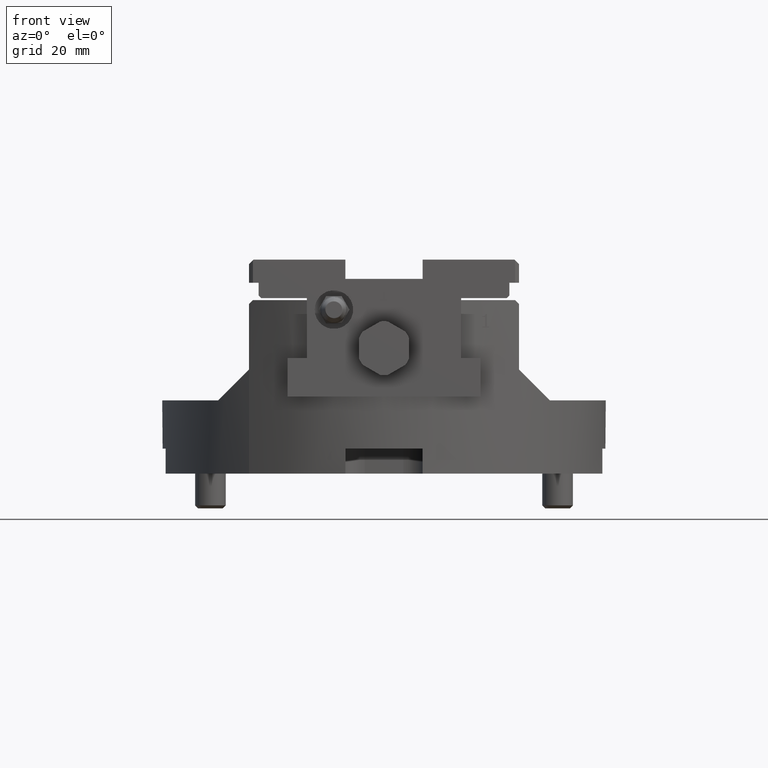
[diagram: clean part render]
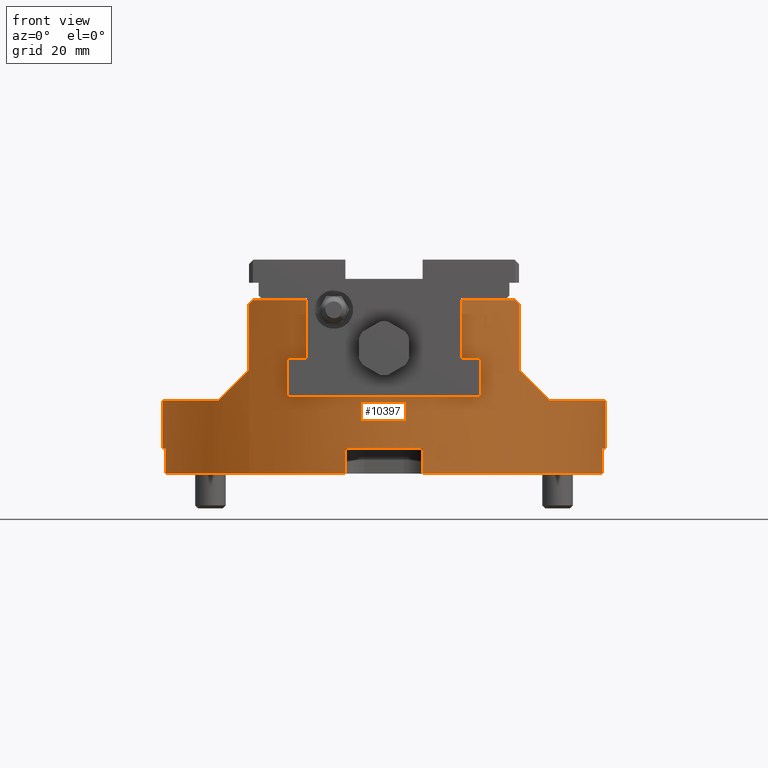
[diagram: same view with one face highlighted and labeled with its STEP entity id]
A machine part, front view. The second image highlights one B-rep face of the part: STEP entity #10397.
In plain terms, the highlighted cylindrical surface (bore or boss wall) has radius 57.5 mm, axis along (0, 0, 1).
Its self-contained STEP definition (entity closure, byte-faithful):
#3163=CARTESIAN_POINT('',(19.999999999999993,53.909646632119561,45.0));
#3164=VERTEX_POINT('',#3163);
#3173=CARTESIAN_POINT('',(20.000000000000004,53.909646632119561,30.000000000000014));
#3174=VERTEX_POINT('',#3173);
#3175=CARTESIAN_POINT('',(20.000000000000018,53.909646632119561,30.000000000000014));
#3176=DIRECTION('',(0.0,0.0,1.0));
#3177=VECTOR('',#3176,14.999999999999986);
#3178=LINE('',#3175,#3177);
#3179=EDGE_CURVE('',#3174,#3164,#3178,.T.);
#3219=CARTESIAN_POINT('',(25.0,51.780787943019952,30.000000000000014));
#3220=VERTEX_POINT('',#3219);
#3221=CARTESIAN_POINT('',(-1.804112E-015,2.818926E-015,30.000000000000014));
#3222=DIRECTION('',(0.0,0.0,1.0));
#3223=DIRECTION('',(0.608695652173913,0.793403808299768,0.0));
#3224=AXIS2_PLACEMENT_3D('',#3221,#3222,#3223);
#3225=CIRCLE('',#3224,57.5);
#3226=EDGE_CURVE('',#3220,#3174,#3225,.T.);
#3251=CARTESIAN_POINT('',(25.000000000000007,51.780787943019945,20.000000000000014));
#3252=VERTEX_POINT('',#3251);
#3253=CARTESIAN_POINT('',(25.000000000000028,51.780787943019931,20.000000000000014));
#3254=DIRECTION('',(0.0,0.0,1.0));
#3255=VECTOR('',#3254,10.0);
#3256=LINE('',#3253,#3255);
#3257=EDGE_CURVE('',#3252,#3220,#3256,.T.);
#3282=CARTESIAN_POINT('',(-24.999999999999993,51.780787943019952,19.999999999999996));
#3283=VERTEX_POINT('',#3282);
#3284=CARTESIAN_POINT('',(-1.804112E-015,2.818926E-015,20.000000000000004));
#3285=DIRECTION('',(0.0,0.0,-1.0));
#3286=DIRECTION('',(0.608695652173913,0.793403808299768,0.0));
#3287=AXIS2_PLACEMENT_3D('',#3284,#3285,#3286);
#3288=CIRCLE('',#3287,57.5);
#3289=EDGE_CURVE('',#3283,#3252,#3288,.T.);
#3314=CARTESIAN_POINT('',(-24.999999999999993,51.780787943019952,29.999999999999993));
#3315=VERTEX_POINT('',#3314);
#3316=CARTESIAN_POINT('',(-24.999999999999993,51.780787943019952,29.999999999999993));
#3317=DIRECTION('',(0.0,0.0,-1.0));
#3318=VECTOR('',#3317,9.999999999999996);
#3319=LINE('',#3316,#3318);
#3320=EDGE_CURVE('',#3315,#3283,#3319,.T.);
#3345=CARTESIAN_POINT('',(-19.999999999999996,53.909646632119568,30.0));
#3346=VERTEX_POINT('',#3345);
#3347=CARTESIAN_POINT('',(-1.804112E-015,2.818926E-015,30.0));
#3348=DIRECTION('',(0.0,0.0,1.0));
#3349=DIRECTION('',(0.608695652173913,0.793403808299768,0.0));
#3350=AXIS2_PLACEMENT_3D('',#3347,#3348,#3349);
#3351=CIRCLE('',#3350,57.5);
#3352=EDGE_CURVE('',#3346,#3315,#3351,.T.);
#4775=CARTESIAN_POINT('',(-19.999999999999996,53.909646632119568,45.0));
#4776=VERTEX_POINT('',#4775);
#4792=CARTESIAN_POINT('',(-19.999999999999996,53.909646632119568,45.0));
#4793=DIRECTION('',(0.0,0.0,-1.0));
#4794=VECTOR('',#4793,15.0);
#4795=LINE('',#4792,#4794);
#4796=EDGE_CURVE('',#4776,#3346,#4795,.T.);
#5194=CARTESIAN_POINT('',(-19.999999999999993,-53.909646632119568,45.0));
#5195=VERTEX_POINT('',#5194);
#5204=CARTESIAN_POINT('',(-19.999999999999993,-53.909646632119568,30.0));
#5205=VERTEX_POINT('',#5204);
#5206=CARTESIAN_POINT('',(-19.999999999999993,-53.909646632119568,30.0));
#5207=DIRECTION('',(0.0,0.0,1.0));
#5208=VECTOR('',#5207,15.0);
#5209=LINE('',#5206,#5208);
#5210=EDGE_CURVE('',#5205,#5195,#5209,.T.);
#6356=CARTESIAN_POINT('',(-24.999999999999993,-51.780787943019952,29.999999999999993));
#6357=VERTEX_POINT('',#6356);
#6358=CARTESIAN_POINT('',(-1.804112E-015,2.818926E-015,30.0));
#6359=DIRECTION('',(0.0,0.0,1.0));
#6360=DIRECTION('',(-0.608695652173913,-0.793403808299768,0.0));
#6361=AXIS2_PLACEMENT_3D('',#6358,#6359,#6360);
#6362=CIRCLE('',#6361,57.499999999999993);
#6363=EDGE_CURVE('',#6357,#5205,#6362,.T.);
#6381=CARTESIAN_POINT('',(-24.999999999999993,-51.780787943019952,19.999999999999996));
#6382=VERTEX_POINT('',#6381);
#6383=CARTESIAN_POINT('',(-24.999999999999993,-51.780787943019952,19.999999999999996));
#6384=DIRECTION('',(0.0,0.0,1.0));
#6385=VECTOR('',#6384,9.999999999999996);
#6386=LINE('',#6383,#6385);
#6387=EDGE_CURVE('',#6382,#6357,#6386,.T.);
#6405=CARTESIAN_POINT('',(25.000000000000007,-51.780787943019945,20.000000000000014));
#6406=VERTEX_POINT('',#6405);
#6407=CARTESIAN_POINT('',(-1.804112E-015,2.818926E-015,20.000000000000004));
#6408=DIRECTION('',(0.0,0.0,-1.0));
#6409=DIRECTION('',(-0.608695652173913,-0.793403808299768,0.0));
#6410=AXIS2_PLACEMENT_3D('',#6407,#6408,#6409);
#6411=CIRCLE('',#6410,57.499999999999993);
#6412=EDGE_CURVE('',#6406,#6382,#6411,.T.);
#6430=CARTESIAN_POINT('',(25.0,-51.780787943019952,30.000000000000014));
#6431=VERTEX_POINT('',#6430);
#6432=CARTESIAN_POINT('',(25.000000000000028,-51.780787943019931,30.000000000000014));
#6433=DIRECTION('',(0.0,0.0,-1.0));
#6434=VECTOR('',#6433,10.0);
#6435=LINE('',#6432,#6434);
#6436=EDGE_CURVE('',#6431,#6406,#6435,.T.);
#6454=CARTESIAN_POINT('',(20.000000000000004,-53.909646632119561,30.000000000000014));
#6455=VERTEX_POINT('',#6454);
#6456=CARTESIAN_POINT('',(-1.804112E-015,2.818926E-015,30.000000000000014));
#6457=DIRECTION('',(0.0,0.0,1.0));
#6458=DIRECTION('',(-0.608695652173913,-0.793403808299768,0.0));
#6459=AXIS2_PLACEMENT_3D('',#6456,#6457,#6458);
#6460=CIRCLE('',#6459,57.499999999999993);
#6461=EDGE_CURVE('',#6455,#6431,#6460,.T.);
#6479=CARTESIAN_POINT('',(19.999999999999996,-53.909646632119561,45.0));
#6480=VERTEX_POINT('',#6479);
#6496=CARTESIAN_POINT('',(20.000000000000018,-53.909646632119561,45.0));
#6497=DIRECTION('',(0.0,0.0,-1.0));
#6498=VECTOR('',#6497,14.999999999999986);
#6499=LINE('',#6496,#6498);
#6500=EDGE_CURVE('',#6480,#6455,#6499,.T.);
#6856=CARTESIAN_POINT('',(-43.0,-38.17394399325277,19.0));
#6857=VERTEX_POINT('',#6856);
#6864=CARTESIAN_POINT('',(-35.0,-45.620718977236656,27.000000000000011));
#6865=VERTEX_POINT('',#6864);
#6866=CARTESIAN_POINT('',(-1.804112E-015,2.818926E-015,62.000000000000128));
#6867=DIRECTION('',(-0.707106781186549,2.616821E-016,0.707106781186546));
#6868=DIRECTION('',(-0.707106781186546,2.184476E-016,-0.707106781186549));
#6869=AXIS2_PLACEMENT_3D('',#6866,#6867,#6868);
#6870=ELLIPSE('',#6869,81.31727983645311,57.499999999999993);
#6871=EDGE_CURVE('',#6857,#6865,#6870,.T.);
#6962=CARTESIAN_POINT('',(-43.0,38.173943993252777,19.0));
#6963=VERTEX_POINT('',#6962);
#6970=CARTESIAN_POINT('',(-1.804112E-015,2.818926E-015,19.0));
#6971=DIRECTION('',(0.0,0.0,-1.0));
#6972=DIRECTION('',(1.0,0.0,0.0));
#6973=AXIS2_PLACEMENT_3D('',#6970,#6971,#6972);
#6974=CIRCLE('',#6973,57.499999999999993);
#6975=EDGE_CURVE('',#6857,#6963,#6974,.T.);
#7019=CARTESIAN_POINT('',(-35.0,45.620718977236656,26.999999999999993));
#7020=VERTEX_POINT('',#7019);
#7027=CARTESIAN_POINT('',(-1.804112E-015,2.818926E-015,62.000000000000234));
#7028=DIRECTION('',(-0.70710678118655,2.616821E-016,0.707106781186545));
#7029=DIRECTION('',(-0.707106781186545,4.368953E-016,-0.70710678118655));
#7030=AXIS2_PLACEMENT_3D('',#7027,#7028,#7029);
#7031=ELLIPSE('',#7030,81.31727983645321,57.499999999999993);
#7032=EDGE_CURVE('',#7020,#6963,#7031,.T.);
#7044=CARTESIAN_POINT('',(-35.0,-45.620718977236656,44.0));
#7045=VERTEX_POINT('',#7044);
#7046=CARTESIAN_POINT('',(-35.0,-45.620718977236656,27.000000000000011));
#7047=DIRECTION('',(0.0,0.0,1.0));
#7048=VECTOR('',#7047,16.999999999999989);
#7049=LINE('',#7046,#7048);
#7050=EDGE_CURVE('',#6865,#7045,#7049,.T.);
#7052=CARTESIAN_POINT('',(-35.0,45.620718977236656,44.0));
#7053=VERTEX_POINT('',#7052);
#7060=CARTESIAN_POINT('',(-35.0,45.620718977236656,26.999999999999993));
#7061=DIRECTION('',(0.0,0.0,1.0));
#7062=VECTOR('',#7061,17.000000000000007);
#7063=LINE('',#7060,#7062);
#7064=EDGE_CURVE('',#7020,#7053,#7063,.T.);
#7588=CARTESIAN_POINT('',(43.0,38.173943993252777,19.0));
#7589=VERTEX_POINT('',#7588);
#7596=CARTESIAN_POINT('',(35.0,45.620718977236635,26.999999999999993));
#7597=VERTEX_POINT('',#7596);
#7598=CARTESIAN_POINT('',(-1.804112E-015,2.818926E-015,62.000000000000234));
#7599=DIRECTION('',(0.70710678118655,2.616821E-016,0.707106781186545));
#7600=DIRECTION('',(-0.707106781186545,-2.730596E-016,0.70710678118655));
#7601=AXIS2_PLACEMENT_3D('',#7598,#7599,#7600);
#7602=ELLIPSE('',#7601,81.31727983645321,57.499999999999993);
#7603=EDGE_CURVE('',#7589,#7597,#7602,.T.);
#7694=CARTESIAN_POINT('',(43.0,-38.17394399325277,19.0));
#7695=VERTEX_POINT('',#7694);
#7702=CARTESIAN_POINT('',(-1.804112E-015,2.818926E-015,19.0));
#7703=DIRECTION('',(0.0,0.0,-1.0));
#7704=DIRECTION('',(1.0,0.0,0.0));
#7705=AXIS2_PLACEMENT_3D('',#7702,#7703,#7704);
#7706=CIRCLE('',#7705,57.499999999999993);
#7707=EDGE_CURVE('',#7589,#7695,#7706,.T.);
#7751=CARTESIAN_POINT('',(35.0,-45.620718977236656,27.000000000000007));
#7752=VERTEX_POINT('',#7751);
#7759=CARTESIAN_POINT('',(-1.804112E-015,2.818926E-015,62.000000000000128));
#7760=DIRECTION('',(0.707106781186549,2.616821E-016,0.707106781186546));
#7761=DIRECTION('',(-0.707106781186546,-1.638357E-016,0.707106781186549));
#7762=AXIS2_PLACEMENT_3D('',#7759,#7760,#7761);
#7763=ELLIPSE('',#7762,81.317279836453125,57.5);
#7764=EDGE_CURVE('',#7752,#7695,#7763,.T.);
#7776=CARTESIAN_POINT('',(35.0,45.620718977236635,44.0));
#7777=VERTEX_POINT('',#7776);
#7778=CARTESIAN_POINT('',(35.0,45.620718977236635,26.999999999999993));
#7779=DIRECTION('',(0.0,0.0,1.0));
#7780=VECTOR('',#7779,17.000000000000007);
#7781=LINE('',#7778,#7780);
#7782=EDGE_CURVE('',#7597,#7777,#7781,.T.);
#7784=CARTESIAN_POINT('',(35.0,-45.620718977236656,44.0));
#7785=VERTEX_POINT('',#7784);
#7792=CARTESIAN_POINT('',(35.0,-45.620718977236656,27.000000000000007));
#7793=DIRECTION('',(0.0,0.0,1.0));
#7794=VECTOR('',#7793,16.999999999999993);
#7795=LINE('',#7792,#7794);
#7796=EDGE_CURVE('',#7752,#7785,#7795,.T.);
#9240=CARTESIAN_POINT('',(56.623758264530615,9.999999999999981,6.5));
#9241=VERTEX_POINT('',#9240);
#9249=CARTESIAN_POINT('',(56.623758264530615,9.999999999999981,0.0));
#9250=VERTEX_POINT('',#9249);
#9257=CARTESIAN_POINT('',(56.623758264530622,9.999999999999981,6.5));
#9258=DIRECTION('',(0.0,0.0,-1.0));
#9259=VECTOR('',#9258,6.5);
#9260=LINE('',#9257,#9259);
#9261=EDGE_CURVE('',#9241,#9250,#9260,.T.);
#9271=CARTESIAN_POINT('',(56.623758264530615,-10.00000000000002,6.5));
#9272=VERTEX_POINT('',#9271);
#9279=CARTESIAN_POINT('',(56.623758264530615,-10.00000000000002,0.0));
#9280=VERTEX_POINT('',#9279);
#9281=CARTESIAN_POINT('',(56.623758264530615,-10.00000000000002,0.0));
#9282=DIRECTION('',(0.0,0.0,1.0));
#9283=VECTOR('',#9282,6.5);
#9284=LINE('',#9281,#9283);
#9285=EDGE_CURVE('',#9280,#9272,#9284,.T.);
#9306=CARTESIAN_POINT('',(-1.804112E-015,2.818926E-015,6.5));
#9307=DIRECTION('',(0.0,0.0,1.0));
#9308=DIRECTION('',(-0.608695652173913,-0.793403808299768,0.0));
#9309=AXIS2_PLACEMENT_3D('',#9306,#9307,#9308);
#9310=CIRCLE('',#9309,57.499999999999993);
#9311=EDGE_CURVE('',#9272,#9241,#9310,.T.);
#9468=CARTESIAN_POINT('',(9.999999999999979,-56.623758264530615,6.5));
#9469=VERTEX_POINT('',#9468);
#9477=CARTESIAN_POINT('',(9.999999999999979,-56.623758264530615,0.0));
#9478=VERTEX_POINT('',#9477);
#9485=CARTESIAN_POINT('',(9.999999999999979,-56.623758264530622,6.5));
#9486=DIRECTION('',(0.0,0.0,-1.0));
#9487=VECTOR('',#9486,6.5);
#9488=LINE('',#9485,#9487);
#9489=EDGE_CURVE('',#9469,#9478,#9488,.T.);
#9499=CARTESIAN_POINT('',(-10.000000000000021,-56.623758264530615,6.5));
#9500=VERTEX_POINT('',#9499);
#9507=CARTESIAN_POINT('',(-10.000000000000021,-56.623758264530615,0.0));
#9508=VERTEX_POINT('',#9507);
#9509=CARTESIAN_POINT('',(-10.000000000000021,-56.623758264530615,0.0));
#9510=DIRECTION('',(0.0,0.0,1.0));
#9511=VECTOR('',#9510,6.5);
#9512=LINE('',#9509,#9511);
#9513=EDGE_CURVE('',#9508,#9500,#9512,.T.);
#9534=CARTESIAN_POINT('',(-1.804112E-015,2.818926E-015,6.5));
#9535=DIRECTION('',(0.0,0.0,1.0));
#9536=DIRECTION('',(-0.608695652173913,-0.793403808299768,0.0));
#9537=AXIS2_PLACEMENT_3D('',#9534,#9535,#9536);
#9538=CIRCLE('',#9537,57.499999999999993);
#9539=EDGE_CURVE('',#9500,#9469,#9538,.T.);
#9696=CARTESIAN_POINT('',(-56.623758264530622,-9.999999999999981,6.5));
#9697=VERTEX_POINT('',#9696);
#9705=CARTESIAN_POINT('',(-56.623758264530622,-9.999999999999981,0.0));
#9706=VERTEX_POINT('',#9705);
#9713=CARTESIAN_POINT('',(-56.623758264530622,-9.999999999999981,6.5));
#9714=DIRECTION('',(0.0,0.0,-1.0));
#9715=VECTOR('',#9714,6.5);
#9716=LINE('',#9713,#9715);
#9717=EDGE_CURVE('',#9697,#9706,#9716,.T.);
#9727=CARTESIAN_POINT('',(-56.623758264530622,10.000000000000018,6.5));
#9728=VERTEX_POINT('',#9727);
#9735=CARTESIAN_POINT('',(-56.623758264530622,10.000000000000018,0.0));
#9736=VERTEX_POINT('',#9735);
#9737=CARTESIAN_POINT('',(-56.623758264530622,10.00000000000002,0.0));
#9738=DIRECTION('',(0.0,0.0,1.0));
#9739=VECTOR('',#9738,6.5);
#9740=LINE('',#9737,#9739);
#9741=EDGE_CURVE('',#9736,#9728,#9740,.T.);
#9762=CARTESIAN_POINT('',(-1.804112E-015,2.818926E-015,6.5));
#9763=DIRECTION('',(0.0,0.0,1.0));
#9764=DIRECTION('',(-0.608695652173913,-0.793403808299768,0.0));
#9765=AXIS2_PLACEMENT_3D('',#9762,#9763,#9764);
#9766=CIRCLE('',#9765,57.499999999999993);
#9767=EDGE_CURVE('',#9728,#9697,#9766,.T.);
#9776=CARTESIAN_POINT('',(-1.804112E-015,2.818926E-015,0.0));
#9777=DIRECTION('',(0.0,0.0,1.0));
#9778=DIRECTION('',(-0.608695652173913,-0.793403808299768,0.0));
#9779=AXIS2_PLACEMENT_3D('',#9776,#9777,#9778);
#9780=CYLINDRICAL_SURFACE('',#9779,57.499999999999993);
#9781=ORIENTED_EDGE('',*,*,#9285,.T.);
#9782=ORIENTED_EDGE('',*,*,#9311,.T.);
#9783=ORIENTED_EDGE('',*,*,#9261,.T.);
#9784=CARTESIAN_POINT('',(10.000000000000009,56.623758264530622,0.0));
#9785=VERTEX_POINT('',#9784);
#9786=CARTESIAN_POINT('',(-1.804112E-015,2.818926E-015,0.0));
#9787=DIRECTION('',(0.0,0.0,1.0));
#9788=DIRECTION('',(0.608695652173913,0.793403808299768,0.0));
#9789=AXIS2_PLACEMENT_3D('',#9786,#9787,#9788);
#9790=CIRCLE('',#9789,57.5);
#9791=EDGE_CURVE('',#9250,#9785,#9790,.T.);
#9792=ORIENTED_EDGE('',*,*,#9791,.T.);
#9793=CARTESIAN_POINT('',(10.000000000000009,56.623758264530622,6.5));
#9794=VERTEX_POINT('',#9793);
#9795=CARTESIAN_POINT('',(10.000000000000007,56.623758264530622,0.0));
#9796=DIRECTION('',(0.0,0.0,1.0));
#9797=VECTOR('',#9796,6.5);
#9798=LINE('',#9795,#9797);
#9799=EDGE_CURVE('',#9785,#9794,#9798,.T.);
#9800=ORIENTED_EDGE('',*,*,#9799,.T.);
#9801=CARTESIAN_POINT('',(-9.999999999999989,56.623758264530622,6.5));
#9802=VERTEX_POINT('',#9801);
#9803=CARTESIAN_POINT('',(-1.804112E-015,2.818926E-015,6.5));
#9804=DIRECTION('',(0.0,0.0,1.0));
#9805=DIRECTION('',(-0.608695652173913,-0.793403808299768,0.0));
#9806=AXIS2_PLACEMENT_3D('',#9803,#9804,#9805);
#9807=CIRCLE('',#9806,57.499999999999993);
#9808=EDGE_CURVE('',#9794,#9802,#9807,.T.);
#9809=ORIENTED_EDGE('',*,*,#9808,.T.);
#9810=CARTESIAN_POINT('',(-9.999999999999989,56.623758264530622,0.0));
#9811=VERTEX_POINT('',#9810);
#9812=CARTESIAN_POINT('',(-9.999999999999989,56.623758264530636,6.5));
#9813=DIRECTION('',(0.0,0.0,-1.0));
#9814=VECTOR('',#9813,6.5);
#9815=LINE('',#9812,#9814);
#9816=EDGE_CURVE('',#9802,#9811,#9815,.T.);
#9817=ORIENTED_EDGE('',*,*,#9816,.T.);
#9818=CARTESIAN_POINT('',(-1.804112E-015,2.818926E-015,0.0));
#9819=DIRECTION('',(0.0,0.0,1.0));
#9820=DIRECTION('',(0.608695652173913,0.793403808299768,0.0));
#9821=AXIS2_PLACEMENT_3D('',#9818,#9819,#9820);
#9822=CIRCLE('',#9821,57.5);
#9823=EDGE_CURVE('',#9811,#9736,#9822,.T.);
#9824=ORIENTED_EDGE('',*,*,#9823,.T.);
#9825=ORIENTED_EDGE('',*,*,#9741,.T.);
#9826=ORIENTED_EDGE('',*,*,#9767,.T.);
#9827=ORIENTED_EDGE('',*,*,#9717,.T.);
#9828=CARTESIAN_POINT('',(-1.804112E-015,2.818926E-015,0.0));
#9829=DIRECTION('',(0.0,0.0,1.0));
#9830=DIRECTION('',(0.608695652173913,0.793403808299768,0.0));
#9831=AXIS2_PLACEMENT_3D('',#9828,#9829,#9830);
#9832=CIRCLE('',#9831,57.5);
#9833=EDGE_CURVE('',#9706,#9508,#9832,.T.);
#9834=ORIENTED_EDGE('',*,*,#9833,.T.);
#9835=ORIENTED_EDGE('',*,*,#9513,.T.);
#9836=ORIENTED_EDGE('',*,*,#9539,.T.);
#9837=ORIENTED_EDGE('',*,*,#9489,.T.);
#9838=CARTESIAN_POINT('',(-1.804112E-015,2.818926E-015,0.0));
#9839=DIRECTION('',(0.0,0.0,1.0));
#9840=DIRECTION('',(0.608695652173913,0.793403808299768,0.0));
#9841=AXIS2_PLACEMENT_3D('',#9838,#9839,#9840);
#9842=CIRCLE('',#9841,57.5);
#9843=EDGE_CURVE('',#9478,#9280,#9842,.T.);
#9844=ORIENTED_EDGE('',*,*,#9843,.T.);
#9845=EDGE_LOOP('',(#9781,#9782,#9783,#9792,#9800,#9809,#9817,#9824,#9825,#9826,#9827,#9834,#9835,#9836,#9837,#9844));
#9846=FACE_OUTER_BOUND('',#9845,.T.);
#9847=CARTESIAN_POINT('',(-23.696379932155004,52.390185894983823,40.206316856582006));
#9848=VERTEX_POINT('',#9847);
#9849=CARTESIAN_POINT('',(-23.670853190288263,52.401724296475393,40.206316856582006));
#9850=VERTEX_POINT('',#9849);
#9851=CARTESIAN_POINT('',(-1.804112E-015,2.818926E-015,40.206316856581978));
#9852=DIRECTION('',(0.0,0.0,-1.0));
#9853=DIRECTION('',(0.608695652173913,0.793403808299768,0.0));
#9854=AXIS2_PLACEMENT_3D('',#9851,#9852,#9853);
#9855=CIRCLE('',#9854,57.5);
#9856=EDGE_CURVE('',#9848,#9850,#9855,.T.);
#9857=ORIENTED_EDGE('',*,*,#9856,.T.);
#9858=CARTESIAN_POINT('',(-23.670853190288263,52.401724296475393,40.705506475309377));
#9859=VERTEX_POINT('',#9858);
#9860=CARTESIAN_POINT('',(-23.670853190288263,52.401724296475393,40.206316856582006));
#9861=DIRECTION('',(0.0,0.0,1.0));
#9862=VECTOR('',#9861,0.499189618727371);
#9863=LINE('',#9860,#9862);
#9864=EDGE_CURVE('',#9850,#9859,#9863,.T.);
#9865=ORIENTED_EDGE('',*,*,#9864,.T.);
#9866=CARTESIAN_POINT('',(-24.56712546027606,51.987559537057095,40.915393019547032));
#9867=VERTEX_POINT('',#9866);
#9868=CARTESIAN_POINT('',(-23.670853190288263,52.401724296475422,40.705506475309377));
#9869=CARTESIAN_POINT('',(-23.772411858160702,52.355848319116177,40.755290136031164));
#9870=CARTESIAN_POINT('',(-23.903007555526159,52.29641347597736,40.798040901269836));
#9871=CARTESIAN_POINT('',(-24.027020619679099,52.239374806189161,40.83276237460457));
#9872=CARTESIAN_POINT('',(-24.042012906188607,52.232479241714351,40.836959950721422));
#9873=CARTESIAN_POINT('',(-24.058043135716197,52.225098470294441,40.84135606975326));
#9874=CARTESIAN_POINT('',(-24.075026603178319,52.217268159644817,40.845903555576449));
#9875=CARTESIAN_POINT('',(-24.197616420328348,52.160747525510104,40.878728151425364));
#9876=CARTESIAN_POINT('',(-24.370703567217568,52.080380229793661,40.915393019547032));
#9877=CARTESIAN_POINT('',(-24.567125460276049,51.987559537057102,40.915393019547032));
#9878=B_SPLINE_CURVE_WITH_KNOTS('',3,(#9868,#9869,#9870,#9871,#9872,#9873,#9874,#9875,#9876,#9877),.UNSPECIFIED.,.F.,.U.,(4,3,3,4),(0.0,0.036616202799029,0.041042838065264,0.072995112186423),.UNSPECIFIED.);
#9879=EDGE_CURVE('',#9859,#9867,#9878,.T.);
#9880=ORIENTED_EDGE('',*,*,#9879,.T.);
#9881=CARTESIAN_POINT('',(-25.610885572160566,51.481380519656796,39.953885742566456));
#9882=VERTEX_POINT('',#9881);
#9883=CARTESIAN_POINT('',(-24.567125460276053,51.987559537057102,40.915393019547032));
#9884=CARTESIAN_POINT('',(-24.702337603392074,51.923663987559046,40.915393019547032));
#9885=CARTESIAN_POINT('',(-24.824040174935469,51.865514884033431,40.900614614543031));
#9886=CARTESIAN_POINT('',(-24.932938082106595,51.813112226480257,40.871912096042735));
#9887=CARTESIAN_POINT('',(-25.052091784779567,51.755774387401758,40.840506429541037));
#9888=CARTESIAN_POINT('',(-25.156251710699856,51.705154462020239,40.792341115075402));
#9889=CARTESIAN_POINT('',(-25.246088712168465,51.661252450335709,40.728229172321882));
#9890=CARTESIAN_POINT('',(-25.278086289508469,51.645615708333061,40.705394184364387));
#9891=CARTESIAN_POINT('',(-25.307405408044726,51.631216344210998,40.681153729965338));
#9892=CARTESIAN_POINT('',(-25.33434586860421,51.61805435796964,40.655871143901827));
#9893=CARTESIAN_POINT('',(-25.365864288433059,51.602655771623247,40.626292319139367));
#9894=CARTESIAN_POINT('',(-25.393520650343859,51.588950825613928,40.596033095297656));
#9895=CARTESIAN_POINT('',(-25.417893495651477,51.576939519941654,40.565476199708058));
#9896=CARTESIAN_POINT('',(-25.462148900224228,51.555129789265351,40.509992001628703));
#9897=CARTESIAN_POINT('',(-25.498673652545829,51.537061261094912,40.449622525794481));
#9898=CARTESIAN_POINT('',(-25.527590717082106,51.522733935430338,40.384449117928924));
#9899=CARTESIAN_POINT('',(-25.556423887524279,51.508448176156641,40.319464790943456));
#9900=CARTESIAN_POINT('',(-25.57772639139305,51.497865505033332,40.249630012458006));
#9901=CARTESIAN_POINT('',(-25.591568314078788,51.490985922060432,40.174991146653845));
#9902=CARTESIAN_POINT('',(-25.604452548288926,51.484582320458003,40.10551635980282));
#9903=CARTESIAN_POINT('',(-25.610885572160566,51.481380519656796,40.031810548091258));
#9904=CARTESIAN_POINT('',(-25.610885572160566,51.481380519656796,39.953885742566456));
#9905=B_SPLINE_CURVE_WITH_KNOTS('',3,(#9883,#9884,#9885,#9886,#9887,#9888,#9889,#9890,#9891,#9892,#9893,#9894,#9895,#9896,#9897,#9898,#9899,#9900,#9901,#9902,#9903,#9904),.UNSPECIFIED.,.F.,.U.,(4,3,3,3,3,3,3,4),(0.0,0.040553242374944,0.081106484749888,0.099795228350585,0.121659727124832,0.162212969499776,0.20276621187472,0.243319454249664),.UNSPECIFIED.);
#9906=EDGE_CURVE('',#9867,#9882,#9905,.T.);
#9907=ORIENTED_EDGE('',*,*,#9906,.T.);
#9908=CARTESIAN_POINT('',(-25.429362074441521,51.571286046471201,39.253318493557011));
#9909=VERTEX_POINT('',#9908);
#9910=CARTESIAN_POINT('',(-25.610885572160566,51.481380519656796,39.953885742566456));
#9911=CARTESIAN_POINT('',(-25.610885572160566,51.481380519656874,39.920789056282743));
#9912=CARTESIAN_POINT('',(-25.609961553776202,51.481840230085545,39.888342383210301));
#9913=CARTESIAN_POINT('',(-25.608113142581583,51.482759650942782,39.856545987649753));
#9914=CARTESIAN_POINT('',(-25.606198208351532,51.483712161118042,39.823605261891153));
#9915=CARTESIAN_POINT('',(-25.603290874315054,51.485158204913574,39.791357761938436));
#9916=CARTESIAN_POINT('',(-25.599389874620901,51.48709778232945,39.759804381333666));
#9917=CARTESIAN_POINT('',(-25.595357926829834,51.48910246715144,39.727191822193831));
#9918=CARTESIAN_POINT('',(-25.590263864970982,51.491634685752643,39.695315762293419));
#9919=CARTESIAN_POINT('',(-25.584105314106871,51.494694438133024,39.664177878058872));
#9920=CARTESIAN_POINT('',(-25.578060437701087,51.497697713640669,39.633614736519768));
#9921=CARTESIAN_POINT('',(-25.570934543472479,51.501246213342881,39.603481811805771));
#9922=CARTESIAN_POINT('',(-25.562668393078944,51.505339937239626,39.573820919217212));
#9923=CARTESIAN_POINT('',(-25.558014354332808,51.507644800897367,39.557121133128135));
#9924=CARTESIAN_POINT('',(-25.550757166802242,51.511249882720122,39.532742403464198));
#9925=CARTESIAN_POINT('',(-25.544036272775386,51.514582507240512,39.512119379657818));
#9926=CARTESIAN_POINT('',(-25.535807643741386,51.518662757691693,39.486869879846637));
#9927=CARTESIAN_POINT('',(-25.526951951144806,51.523051502380348,39.462034281107634));
#9928=CARTESIAN_POINT('',(-25.517466756180657,51.527748741306496,39.437614271844275));
#9929=CARTESIAN_POINT('',(-25.505900955135566,51.533476333737624,39.407837660005839));
#9930=CARTESIAN_POINT('',(-25.493397692280624,51.539663358138171,39.378675082265275));
#9931=CARTESIAN_POINT('',(-25.479951815236213,51.546309814508135,39.350130105654614));
#9932=CARTESIAN_POINT('',(-25.464361774809635,51.55401615624821,39.31703316910923));
#9933=CARTESIAN_POINT('',(-25.447501668860703,51.562341566902589,39.284760457216926));
#9934=CARTESIAN_POINT('',(-25.429362074441521,51.571286046471215,39.253318493557011));
#9935=B_SPLINE_CURVE_WITH_KNOTS('',3,(#9910,#9911,#9912,#9913,#9914,#9915,#9916,#9917,#9918,#9919,#9920,#9921,#9922,#9923,#9924,#9925,#9926,#9927,#9928,#9929,#9930,#9931,#9932,#9933,#9934),.UNSPECIFIED.,.F.,.U.,(4,3,3,3,3,3,3,3,4),(0.0,0.00974665609759,0.01949331219518,0.02923996829277,0.038593622979918,0.043859952439155,0.04873328048795,0.053606608536745,0.05847993658554),.UNSPECIFIED.);
#9936=EDGE_CURVE('',#9882,#9909,#9935,.T.);
#9937=ORIENTED_EDGE('',*,*,#9936,.T.);
#9938=CARTESIAN_POINT('',(-24.961371806884603,51.799420050020508,38.654858212014538));
#9939=VERTEX_POINT('',#9938);
#9940=CARTESIAN_POINT('',(-25.429362074441521,51.571286046471215,39.253318493557011));
#9941=CARTESIAN_POINT('',(-25.414772556528828,51.578480013539519,39.227057361314166));
#9942=CARTESIAN_POINT('',(-25.399321929169684,51.586090918467924,39.200828455100577));
#9943=CARTESIAN_POINT('',(-25.383004338520728,51.594118761256489,39.174632208534248));
#9944=CARTESIAN_POINT('',(-25.367185062757148,51.601901445697685,39.149235956273813));
#9945=CARTESIAN_POINT('',(-25.35054886872862,51.610077022736938,39.123867030961712));
#9946=CARTESIAN_POINT('',(-25.333089774691771,51.618645492374249,39.098525875690051));
#9947=CARTESIAN_POINT('',(-25.316193718263879,51.626937637784984,39.074001946297479));
#9948=CARTESIAN_POINT('',(-25.298524818958995,51.635598804007728,39.049500885831449));
#9949=CARTESIAN_POINT('',(-25.280077064312355,51.644628991042509,39.025023139659716));
#9950=CARTESIAN_POINT('',(-25.26196555496869,51.653494585798498,39.000991546818589));
#9951=CARTESIAN_POINT('',(-25.243101035922667,51.662716991506954,38.976979390172644));
#9952=CARTESIAN_POINT('',(-25.223477249882315,51.672296208167872,38.952987133224973));
#9953=CARTESIAN_POINT('',(-25.211088593810427,51.678343645721583,38.937840625863863));
#9954=CARTESIAN_POINT('',(-25.196925944895995,51.685251645022056,38.92074513805612));
#9955=CARTESIAN_POINT('',(-25.180978177483667,51.693020206069292,38.901747441805455));
#9956=CARTESIAN_POINT('',(-25.161727913354429,51.702397496833342,38.878815663255075));
#9957=CARTESIAN_POINT('',(-25.142221248158052,51.711886385461305,38.855947271813314));
#9958=CARTESIAN_POINT('',(-25.122456005621842,51.721486871953175,38.833143234712473));
#9959=CARTESIAN_POINT('',(-25.098332029139282,51.733204507591843,38.805310332904156));
#9960=CARTESIAN_POINT('',(-25.07382090226433,51.74508933940259,38.777571045104111));
#9961=CARTESIAN_POINT('',(-25.048918489157952,51.757141367385415,38.749927209463031));
#9962=CARTESIAN_POINT('',(-25.020259993071598,51.771011227921726,38.718113796355333));
#9963=CARTESIAN_POINT('',(-24.991079980287143,51.785104122133411,38.686423146254732));
#9964=CARTESIAN_POINT('',(-24.961371806884607,51.799420050020508,38.654858212014538));
#9965=B_SPLINE_CURVE_WITH_KNOTS('',3,(#9940,#9941,#9942,#9943,#9944,#9945,#9946,#9947,#9948,#9949,#9950,#9951,#9952,#9953,#9954,#9955,#9956,#9957,#9958,#9959,#9960,#9961,#9962,#9963,#9964),.UNSPECIFIED.,.F.,.U.,(4,3,3,3,3,3,3,3,4),(0.0,0.009406672631915,0.018813345263831,0.028220017895746,0.037626690527662,0.04233002684362,0.047033363159577,0.051736699475535,0.056440035791493),.UNSPECIFIED.);
#9966=EDGE_CURVE('',#9909,#9939,#9965,.T.);
#9967=ORIENTED_EDGE('',*,*,#9966,.T.);
#9968=CARTESIAN_POINT('',(-24.036736490378217,52.234904985958579,37.74724072341931));
#9969=VERTEX_POINT('',#9968);
#9970=CARTESIAN_POINT('',(-24.961371806884607,51.799420050020508,38.654858212014538));
#9971=CARTESIAN_POINT('',(-24.922626647210997,51.818090767480108,38.612635922626623));
#9972=CARTESIAN_POINT('',(-24.882613555008053,51.837318990454371,38.569884701924103));
#9973=CARTESIAN_POINT('',(-24.841310154026715,51.857104718943283,38.526596878050142));
#9974=CARTESIAN_POINT('',(-24.801646368899636,51.876105015885649,38.48502744541355));
#9975=CARTESIAN_POINT('',(-24.760782093345615,51.895624506716842,38.442952066643471));
#9976=CARTESIAN_POINT('',(-24.718695665291165,51.915663191436892,38.400363314743274));
#9977=CARTESIAN_POINT('',(-24.678382278515912,51.934857674906247,38.359568766310552));
#9978=CARTESIAN_POINT('',(-24.636936924404999,51.954533583663547,38.318292440815888));
#9979=CARTESIAN_POINT('',(-24.594338860978439,51.974690917708827,38.276527226723303));
#9980=CARTESIAN_POINT('',(-24.55573812425612,51.992956723285971,38.238681186230899));
#9981=CARTESIAN_POINT('',(-24.514147407508538,52.012622627990332,38.198428547765388));
#9982=CARTESIAN_POINT('',(-24.469272949786884,52.033688631821882,38.15566859328716));
#9983=CARTESIAN_POINT('',(-24.445995368381311,52.044616131428015,38.133487861267191));
#9984=CARTESIAN_POINT('',(-24.407328947231392,52.062782940553276,38.096680944642827));
#9985=CARTESIAN_POINT('',(-24.377652590397044,52.07667476295326,38.068479989566349));
#9986=CARTESIAN_POINT('',(-24.339054887854257,52.094742763407822,38.031801226012576));
#9987=CARTESIAN_POINT('',(-24.302280197514609,52.111905174880526,37.996925564618621));
#9988=CARTESIAN_POINT('',(-24.267359287236157,52.128161997371372,37.963883373659961));
#9989=CARTESIAN_POINT('',(-24.22647479459183,52.147195061923391,37.925198436685811));
#9990=CARTESIAN_POINT('',(-24.18814332809859,52.16498128958137,37.889038040021767));
#9991=CARTESIAN_POINT('',(-24.152409810491644,52.181520680345272,37.855446522990881));
#9992=CARTESIAN_POINT('',(-24.1101843265292,52.201064901743585,37.815752192327345));
#9993=CARTESIAN_POINT('',(-24.071605015071931,52.218859670281354,37.779662334099427));
#9994=CARTESIAN_POINT('',(-24.036736490378217,52.234904985958593,37.74724072341931));
#9995=B_SPLINE_CURVE_WITH_KNOTS('',3,(#9970,#9971,#9972,#9973,#9974,#9975,#9976,#9977,#9978,#9979,#9980,#9981,#9982,#9983,#9984,#9985,#9986,#9987,#9988,#9989,#9990,#9991,#9992,#9993,#9994),.UNSPECIFIED.,.F.,.U.,(4,3,3,3,3,3,3,3,4),(0.0,0.018435818172721,0.036871636345443,0.055307454518164,0.073515948799859,0.082961181777247,0.092179090863607,0.101396999949968,0.110614909036329),.UNSPECIFIED.);
#9996=EDGE_CURVE('',#9939,#9969,#9995,.T.);
#9997=ORIENTED_EDGE('',*,*,#9996,.T.);
#9998=CARTESIAN_POINT('',(-25.755537109405431,51.409165605036229,37.74724072341931));
#9999=VERTEX_POINT('',#9998);
#10000=CARTESIAN_POINT('',(-1.804112E-015,2.818926E-015,37.747240723419281));
#10001=DIRECTION('',(0.0,0.0,1.0));
#10002=DIRECTION('',(0.608695652173913,0.793403808299768,0.0));
#10003=AXIS2_PLACEMENT_3D('',#10000,#10001,#10002);
#10004=CIRCLE('',#10003,57.5);
#10005=EDGE_CURVE('',#9969,#9999,#10004,.T.);
#10006=ORIENTED_EDGE('',*,*,#10005,.T.);
#10007=CARTESIAN_POINT('',(-25.755537109405431,51.409165605036229,37.34164915820331));
#10008=VERTEX_POINT('',#10007);
#10009=CARTESIAN_POINT('',(-25.755537109405431,51.409165605036229,37.74724072341931));
#10010=DIRECTION('',(0.0,0.0,-1.0));
#10011=VECTOR('',#10010,0.405591565216);
#10012=LINE('',#10009,#10011);
#10013=EDGE_CURVE('',#9999,#10008,#10012,.T.);
#10014=ORIENTED_EDGE('',*,*,#10013,.T.);
#10015=CARTESIAN_POINT('',(-23.597109269339903,52.434973387337891,37.34164915820331));
#10016=VERTEX_POINT('',#10015);
#10017=CARTESIAN_POINT('',(-1.804112E-015,2.818926E-015,37.341649158203289));
#10018=DIRECTION('',(0.0,0.0,-1.0));
#10019=DIRECTION('',(0.608695652173913,0.793403808299768,0.0));
#10020=AXIS2_PLACEMENT_3D('',#10017,#10018,#10019);
#10021=CIRCLE('',#10020,57.5);
#10022=EDGE_CURVE('',#10008,#10016,#10021,.T.);
#10023=ORIENTED_EDGE('',*,*,#10022,.T.);
#10024=CARTESIAN_POINT('',(-23.597109269339903,52.434973387337891,37.838002472278831));
#10025=VERTEX_POINT('',#10024);
#10026=CARTESIAN_POINT('',(-23.597109269339903,52.434973387337891,37.34164915820331));
#10027=DIRECTION('',(0.0,0.0,1.0));
#10028=VECTOR('',#10027,0.49635331407552);
#10029=LINE('',#10026,#10028);
#10030=EDGE_CURVE('',#10016,#10025,#10029,.T.);
#10031=ORIENTED_EDGE('',*,*,#10030,.T.);
#10032=CARTESIAN_POINT('',(-24.44232805559421,52.046350488989255,38.68038495388128));
#10033=VERTEX_POINT('',#10032);
#10034=CARTESIAN_POINT('',(-23.597109269339903,52.434973387337905,37.838002472278831));
#10035=CARTESIAN_POINT('',(-23.640337436862762,52.415519581477994,37.878594775928342));
#10036=CARTESIAN_POINT('',(-23.682734283749927,52.396375643287776,37.918623324046258));
#10037=CARTESIAN_POINT('',(-23.724315349300149,52.377541572767257,37.958097612870716));
#10038=CARTESIAN_POINT('',(-23.767394749414592,52.358028834240756,37.998994320542813));
#10039=CARTESIAN_POINT('',(-23.8096097491586,52.338843609753802,38.039306767990141));
#10040=CARTESIAN_POINT('',(-23.850976405514071,52.319985899306332,38.079044767812753));
#10041=CARTESIAN_POINT('',(-23.893784077815855,52.300471276653198,38.1201670489978));
#10042=CARTESIAN_POINT('',(-23.935694339725821,52.28130233840286,38.160684794880765));
#10043=CARTESIAN_POINT('',(-23.976723711476037,52.262479084555338,38.200608101159034));
#10044=CARTESIAN_POINT('',(-23.995774550239283,52.253739034226697,38.219145369422201));
#10045=CARTESIAN_POINT('',(-24.015798457114585,52.244547953769576,38.238685913376628));
#10046=CARTESIAN_POINT('',(-24.036736490378217,52.234905843183981,38.259193713080052));
#10047=CARTESIAN_POINT('',(-24.061033234917794,52.223717022592723,38.282991209444155));
#10048=CARTESIAN_POINT('',(-24.086522225641914,52.21197359668291,38.308217315365965));
#10049=CARTESIAN_POINT('',(-24.111214480033102,52.200568352249164,38.332921312417454));
#10050=CARTESIAN_POINT('',(-24.163247650790098,52.176534457987913,38.384979228094011));
#10051=CARTESIAN_POINT('',(-24.214513688560611,52.152760536390829,38.437428856766694));
#10052=CARTESIAN_POINT('',(-24.265029367878547,52.129246587457914,38.490239445123308));
#10053=CARTESIAN_POINT('',(-24.325142897409901,52.101265048207495,38.553083910556765));
#10054=CARTESIAN_POINT('',(-24.38423391956195,52.073633015384608,38.616481404245789));
#10055=CARTESIAN_POINT('',(-24.44232805559421,52.046350488989255,38.68038495388128));
#10056=B_SPLINE_CURVE_WITH_KNOTS('',3,(#10034,#10035,#10036,#10037,#10038,#10039,#10040,#10041,#10042,#10043,#10044,#10045,#10046,#10047,#10048,#10049,#10050,#10051,#10052,#10053,#10054,#10055),.UNSPECIFIED.,.F.,.U.,(4,3,3,3,3,3,3,4),(0.0,0.018385194520132,0.036770389040265,0.055155583560397,0.063665624575644,0.07354077808053,0.091925972600662,0.110311167120794),.UNSPECIFIED.);
#10057=EDGE_CURVE('',#10025,#10033,#10056,.T.);
#10058=ORIENTED_EDGE('',*,*,#10057,.T.);
#10059=CARTESIAN_POINT('',(-25.134386390648071,51.715690276410356,39.928359000699714));
#10060=VERTEX_POINT('',#10059);
#10061=CARTESIAN_POINT('',(-24.44232805559421,52.046350488989255,38.68038495388128));
#10062=CARTESIAN_POINT('',(-24.521288794790472,52.009268459743893,38.767185766472913));
#10063=CARTESIAN_POINT('',(-24.592391600531677,51.975659826701389,38.848365735001174));
#10064=CARTESIAN_POINT('',(-24.655881145967435,51.945524589861719,38.924094353714949));
#10065=CARTESIAN_POINT('',(-24.733941017772814,51.908473565029439,39.017202065043229));
#10066=CARTESIAN_POINT('',(-24.80063262434728,51.876607742010904,39.102236642974127));
#10067=CARTESIAN_POINT('',(-24.856288089075093,51.849927120806129,39.179428161807344));
#10068=CARTESIAN_POINT('',(-24.909500224651762,51.824417804878884,39.253230897722155));
#10069=CARTESIAN_POINT('',(-24.953885073486898,51.803256765374599,39.321611005292006));
#10070=CARTESIAN_POINT('',(-24.988316701077274,51.786444002293294,39.383788507542583));
#10071=CARTESIAN_POINT('',(-24.990277893979446,51.78548636322919,39.387330079191166));
#10072=CARTESIAN_POINT('',(-24.992221356096348,51.784542831424943,39.390877595906183));
#10073=CARTESIAN_POINT('',(-24.994146965374632,51.783613406880526,39.394431071907441));
#10074=CARTESIAN_POINT('',(-25.025558142031436,51.768452325718712,39.452396549992763));
#10075=CARTESIAN_POINT('',(-25.051631717662257,51.755833317169973,39.510864296872064));
#10076=CARTESIAN_POINT('',(-25.072429011444921,51.745756381234344,39.569827168563471));
#10077=CARTESIAN_POINT('',(-25.092952361458636,51.735812179578332,39.628013376162528));
#10078=CARTESIAN_POINT('',(-25.108353561495594,51.728335686498149,39.686727286533497));
#10079=CARTESIAN_POINT('',(-25.118667444541813,51.723326901993794,39.745964841464421));
#10080=CARTESIAN_POINT('',(-25.129150794752711,51.718235818271516,39.806175727237999));
#10081=CARTESIAN_POINT('',(-25.134386390648071,51.715690276410371,39.866974252488092));
#10082=CARTESIAN_POINT('',(-25.134386390648071,51.715690276410356,39.928359000699714));
#10083=B_SPLINE_CURVE_WITH_KNOTS('',3,(#10061,#10062,#10063,#10064,#10065,#10066,#10067,#10068,#10069,#10070,#10071,#10072,#10073,#10074,#10075,#10076,#10077,#10078,#10079,#10080,#10081,#10082),.UNSPECIFIED.,.F.,.U.,(4,3,3,3,3,3,3,4),(0.0,0.032262793989434,0.064525587978868,0.095049754356592,0.096788381968302,0.129051175957736,0.16131396994717,0.193576763936604),.UNSPECIFIED.);
#10084=EDGE_CURVE('',#10033,#10060,#10083,.T.);
#10085=ORIENTED_EDGE('',*,*,#10084,.T.);
#10086=CARTESIAN_POINT('',(-24.961371806884607,51.799420050020508,40.367986221738043));
#10087=VERTEX_POINT('',#10086);
#10088=CARTESIAN_POINT('',(-25.134386390648071,51.715690276410356,39.928359000699714));
#10089=CARTESIAN_POINT('',(-25.134386390648071,51.71569027641042,39.952515179599153));
#10090=CARTESIAN_POINT('',(-25.133473375140326,51.716134041752881,39.975931160982377));
#10091=CARTESIAN_POINT('',(-25.131646974999558,51.717021572437773,39.998606644935087));
#10092=CARTESIAN_POINT('',(-25.129715381259299,51.717960221464637,40.022588149252059));
#10093=CARTESIAN_POINT('',(-25.126761874385522,51.719395368215466,40.045744922368669));
#10094=CARTESIAN_POINT('',(-25.122785117227075,51.721327012690196,40.068075877849623));
#10095=CARTESIAN_POINT('',(-25.118601700247783,51.723359038778852,40.091567304306103));
#10096=CARTESIAN_POINT('',(-25.113285234024147,51.72594084395233,40.114148701430082));
#10097=CARTESIAN_POINT('',(-25.106833048334348,51.729072428210671,40.13581789966635));
#10098=CARTESIAN_POINT('',(-25.10178288061994,51.731523539582263,40.152778522095872));
#10099=CARTESIAN_POINT('',(-25.095884258505631,51.734408962075371,40.169695789693648));
#10100=CARTESIAN_POINT('',(-25.089005516218311,51.737728695689938,40.186462724018988));
#10101=CARTESIAN_POINT('',(-25.086509147371782,51.738933462379549,40.192547623082397));
#10102=CARTESIAN_POINT('',(-25.083902926948856,51.740195429642412,40.198606225630165));
#10103=CARTESIAN_POINT('',(-25.081181534347973,51.741514597478506,40.204632801783724));
#10104=CARTESIAN_POINT('',(-25.067204075007066,51.748290031051532,40.235586153800583));
#10105=CARTESIAN_POINT('',(-25.050908559185888,51.756182322640285,40.264099009326522));
#10106=CARTESIAN_POINT('',(-25.032278199194057,51.765191472244716,40.290153289310339));
#10107=CARTESIAN_POINT('',(-25.011551541137802,51.775214336178017,40.319139210804238));
#10108=CARTESIAN_POINT('',(-24.987926241396071,51.786623862103269,40.345094467848845));
#10109=CARTESIAN_POINT('',(-24.961371806884607,51.799420050020508,40.367986221738036));
#10110=B_SPLINE_CURVE_WITH_KNOTS('',3,(#10088,#10089,#10090,#10091,#10092,#10093,#10094,#10095,#10096,#10097,#10098,#10099,#10100,#10101,#10102,#10103,#10104,#10105,#10106,#10107,#10108,#10109),.UNSPECIFIED.,.F.,.U.,(4,3,3,3,3,3,3,4),(0.0,0.007032080047947,0.014064160095893,0.02109624014384,0.026255844729113,0.028128320191787,0.035160400239733,0.04219248028768),.UNSPECIFIED.);
#10111=EDGE_CURVE('',#10060,#10087,#10110,.T.);
#10112=ORIENTED_EDGE('',*,*,#10111,.T.);
#10113=CARTESIAN_POINT('',(-24.533089804453731,52.003629725689422,40.50980145433104));
#10114=VERTEX_POINT('',#10113);
#10115=CARTESIAN_POINT('',(-24.961371806884607,51.799420050020508,40.367986221738036));
#10116=CARTESIAN_POINT('',(-24.945158702219771,51.807232904552329,40.381963036104267));
#10117=CARTESIAN_POINT('',(-24.928180834297851,51.815404930188436,40.394924749580895));
#10118=CARTESIAN_POINT('',(-24.910432439281358,51.823936126928878,40.40686335683808));
#10119=CARTESIAN_POINT('',(-24.893086921405793,51.832273670995626,40.418530965396272));
#10120=CARTESIAN_POINT('',(-24.875003304035307,51.840955301459729,40.429222839111318));
#10121=CARTESIAN_POINT('',(-24.856175659173317,51.849981018321159,40.438930744654613));
#10122=CARTESIAN_POINT('',(-24.837792610599486,51.858793601769094,40.4484094075708));
#10123=CARTESIAN_POINT('',(-24.818698007885477,51.867935291588452,40.456951185358463));
#10124=CARTESIAN_POINT('',(-24.798885813754765,51.877406087779221,40.464547692911324));
#10125=CARTESIAN_POINT('',(-24.789977674918351,51.881664433260994,40.4679633036966));
#10126=CARTESIAN_POINT('',(-24.780799679549069,51.886050531869834,40.471235710544924));
#10127=CARTESIAN_POINT('',(-24.771339395209981,51.890564383605877,40.474347646182778));
#10128=CARTESIAN_POINT('',(-24.759300673169832,51.896308503384184,40.47830775211704));
#10129=CARTESIAN_POINT('',(-24.74683137558624,51.902259505747672,40.482008033746524));
#10130=CARTESIAN_POINT('',(-24.733907980609612,51.908417390696293,40.485411738181256));
#10131=CARTESIAN_POINT('',(-24.705867601903982,51.921778386494275,40.492796884385058));
#10132=CARTESIAN_POINT('',(-24.67668964421312,51.935653603158329,40.498521796715714));
#10133=CARTESIAN_POINT('',(-24.6463593268988,51.950043040688492,40.502563380425997));
#10134=CARTESIAN_POINT('',(-24.610255186472315,51.96717171982052,40.507374339187464));
#10135=CARTESIAN_POINT('',(-24.572507910249438,51.985033948154168,40.50980145433104));
#10136=CARTESIAN_POINT('',(-24.533089804453731,52.003629725689407,40.50980145433104));
#10137=B_SPLINE_CURVE_WITH_KNOTS('',3,(#10115,#10116,#10117,#10118,#10119,#10120,#10121,#10122,#10123,#10124,#10125,#10126,#10127,#10128,#10129,#10130,#10131,#10132,#10133,#10134,#10135,#10136),.UNSPECIFIED.,.F.,.U.,(4,3,3,3,3,3,3,4),(0.0,0.006912996103785,0.013825992207571,0.020738988311356,0.023780938605393,0.027651984415142,0.034564980518927,0.041477976622712),.UNSPECIFIED.);
#10138=EDGE_CURVE('',#10087,#10114,#10137,.T.);
#10139=ORIENTED_EDGE('',*,*,#10138,.T.);
#10140=CARTESIAN_POINT('',(-24.036736490378217,52.234904985958579,40.399185572908493));
#10141=VERTEX_POINT('',#10140);
#10142=CARTESIAN_POINT('',(-24.533089804453731,52.003629725689429,40.50980145433104));
#10143=CARTESIAN_POINT('',(-24.512773451600424,52.013214112620894,40.50980145433104));
#10144=CARTESIAN_POINT('',(-24.492338326306793,52.022839977000373,40.509181323796867));
#10145=CARTESIAN_POINT('',(-24.471783386507159,52.03250731882784,40.507929600006051));
#10146=CARTESIAN_POINT('',(-24.451559211104161,52.042019096468849,40.506698018607679));
#10147=CARTESIAN_POINT('',(-24.431216958581771,52.051572009262742,40.504854880325006));
#10148=CARTESIAN_POINT('',(-24.410755595918165,52.061166057209562,40.502388821918053));
#10149=CARTESIAN_POINT('',(-24.390628572947112,52.070603337925178,40.499963059029199));
#10150=CARTESIAN_POINT('',(-24.370384169505552,52.080081419714539,40.496934310152746));
#10151=CARTESIAN_POINT('',(-24.350021361750329,52.089600302577693,40.493291313013913));
#10152=CARTESIAN_POINT('',(-24.32953220429139,52.099178249401213,40.48962571134949));
#10153=CARTESIAN_POINT('',(-24.308920890934385,52.108798569991414,40.485337808062987));
#10154=CARTESIAN_POINT('',(-24.288186334855443,52.118461264348213,40.480415648091814));
#10155=CARTESIAN_POINT('',(-24.270407329050265,52.126746616512499,40.476195103877203));
#10156=CARTESIAN_POINT('',(-24.255477844401799,52.133693245817511,40.472298252938174));
#10157=CARTESIAN_POINT('',(-24.243417155054274,52.139301152263243,40.469071819110802));
#10158=CARTESIAN_POINT('',(-24.223706870132943,52.14846592143018,40.463798991979203));
#10159=CARTESIAN_POINT('',(-24.204178773947579,52.157532385136804,40.458206685731838));
#10160=CARTESIAN_POINT('',(-24.184834526148833,52.166500543383179,40.452292410892682));
#10161=CARTESIAN_POINT('',(-24.161302753017033,52.177410074085621,40.445097849739312));
#10162=CARTESIAN_POINT('',(-24.138043506455851,52.188173915925304,40.437426979564407));
#10163=CARTESIAN_POINT('',(-24.115059745883556,52.198792068902193,40.42927536124062));
#10164=CARTESIAN_POINT('',(-24.088584202927471,52.211023373016403,40.41988531732617));
#10165=CARTESIAN_POINT('',(-24.062474961688267,52.22306101203521,40.409857621988266));
#10166=CARTESIAN_POINT('',(-24.036736490378217,52.234904985958593,40.399185572908493));
#10167=B_SPLINE_CURVE_WITH_KNOTS('',3,(#10142,#10143,#10144,#10145,#10146,#10147,#10148,#10149,#10150,#10151,#10152,#10153,#10154,#10155,#10156,#10157,#10158,#10159,#10160,#10161,#10162,#10163,#10164,#10165,#10166),.UNSPECIFIED.,.F.,.U.,(4,3,3,3,3,3,3,3,4),(0.0,0.006793456270881,0.013586912541762,0.020380368812643,0.027173825083524,0.030570553218965,0.033967281354405,0.037364009489846,0.040760737625286),.UNSPECIFIED.);
#10168=EDGE_CURVE('',#10114,#10141,#10167,.T.);
#10169=ORIENTED_EDGE('',*,*,#10168,.T.);
#10170=CARTESIAN_POINT('',(-24.036736490378217,52.234904985958593,40.399185572908493));
#10171=CARTESIAN_POINT('',(-24.021424920067631,52.241950852719853,40.39306094478426));
#10172=CARTESIAN_POINT('',(-24.00622400317301,52.24893764274033,40.386626328451982));
#10173=CARTESIAN_POINT('',(-23.991134527018637,52.255865356020053,40.379879834333394));
#10174=CARTESIAN_POINT('',(-23.976068285886516,52.262782401892885,40.373143728576828));
#10175=CARTESIAN_POINT('',(-23.961113275429483,52.269640491828596,40.366096764160588));
#10176=CARTESIAN_POINT('',(-23.946270274246253,52.276439625827166,40.358737072447759));
#10177=CARTESIAN_POINT('',(-23.931449775432529,52.283228452165659,40.351388538215851));
#10178=CARTESIAN_POINT('',(-23.916741081039138,52.289958439584197,40.343728290859175));
#10179=CARTESIAN_POINT('',(-23.902144960794928,52.296629588082851,40.335754483028538));
#10180=CARTESIAN_POINT('',(-23.887570611911265,52.303290785992836,40.327792568813614));
#10181=CARTESIAN_POINT('',(-23.873108638382597,52.30989325787057,40.319518103547622));
#10182=CARTESIAN_POINT('',(-23.858759800883863,52.316437003716025,40.310929261610738));
#10183=CARTESIAN_POINT('',(-23.854721314839807,52.318278743597844,40.308511928617754));
#10184=CARTESIAN_POINT('',(-23.85069179522818,52.320115829484486,40.306069695117031));
#10185=CARTESIAN_POINT('',(-23.846671258963372,52.321948261375937,40.303602520514055));
#10186=CARTESIAN_POINT('',(-23.840937181495224,52.324561670564648,40.300083843061813));
#10187=CARTESIAN_POINT('',(-23.835633048836247,52.326977992559272,40.296801195915691));
#10188=CARTESIAN_POINT('',(-23.830759902698688,52.329197227359856,40.293781386076681));
#10189=CARTESIAN_POINT('',(-23.81658697665268,52.335651589658816,40.284998653050998));
#10190=CARTESIAN_POINT('',(-23.803068865403468,52.341800810651911,40.27652822864561));
#10191=CARTESIAN_POINT('',(-23.790209634111189,52.347644890339083,40.268372064137381));
#10192=CARTESIAN_POINT('',(-23.773449167333894,52.355261947783191,40.257741481238355));
#10193=CARTESIAN_POINT('',(-23.75781035706289,52.362359580989015,40.247646254443403));
#10194=CARTESIAN_POINT('',(-23.743301261948137,52.36893778995659,40.238090251904516));
#10195=CARTESIAN_POINT('',(-23.726057667809656,52.376755780306603,40.226733249413073));
#10196=CARTESIAN_POINT('',(-23.710413389925748,52.383838481982359,40.216140277021523));
#10197=CARTESIAN_POINT('',(-23.696379932155004,52.390185894983823,40.206316856582006));
#10198=B_SPLINE_CURVE_WITH_KNOTS('',3,(#10170,#10171,#10172,#10173,#10174,#10175,#10176,#10177,#10178,#10179,#10180,#10181,#10182,#10183,#10184,#10185,#10186,#10187,#10188,#10189,#10190,#10191,#10192,#10193,#10194,#10195,#10196,#10197),.UNSPECIFIED.,.F.,.U.,(4,3,3,3,3,3,3,3,3,4),(0.0,0.005384139172813,0.010768278345627,0.01615241751844,0.021536556691253,0.022882591484456,0.02422862627766,0.026920695864066,0.029612765450473,0.03230483503688),.UNSPECIFIED.);
#10199=EDGE_CURVE('',#10141,#9848,#10198,.T.);
#10200=ORIENTED_EDGE('',*,*,#10199,.T.);
#10201=EDGE_LOOP('',(#9857,#9865,#9880,#9907,#9937,#9967,#9997,#10006,#10014,#10023,#10031,#10058,#10085,#10112,#10139,#10169,#10200));
#10202=FACE_BOUND('',#10201,.T.);
#10203=CARTESIAN_POINT('',(25.560110873063188,-51.506608626046393,40.509190597785441));
#10204=VERTEX_POINT('',#10203);
#10205=CARTESIAN_POINT('',(25.560110873063188,-51.506608626046393,40.829693023445628));
#10206=VERTEX_POINT('',#10205);
#10207=CARTESIAN_POINT('',(25.560110873063188,-51.506608626046393,40.509190597785441));
#10208=DIRECTION('',(0.0,0.0,1.0));
#10209=VECTOR('',#10208,0.320502425660187);
#10210=LINE('',#10207,#10209);
#10211=EDGE_CURVE('',#10204,#10206,#10210,.T.);
#10212=ORIENTED_EDGE('',*,*,#10211,.T.);
#10213=CARTESIAN_POINT('',(26.283368559287517,-51.141319274894116,41.317537423565575));
#10214=VERTEX_POINT('',#10213);
#10215=CARTESIAN_POINT('',(25.560110873063195,-51.506608626046386,40.829693023445628));
#10216=CARTESIAN_POINT('',(25.697346950632006,-51.438505338875792,40.829693023445628));
#10217=CARTESIAN_POINT('',(25.837987440524557,-51.367945174991746,40.840741656935442));
#10218=CARTESIAN_POINT('',(26.003424058732584,-51.284254933056943,40.888897795814962));
#10219=CARTESIAN_POINT('',(26.065939440704433,-51.252515137535532,40.911279507252488));
#10220=CARTESIAN_POINT('',(26.15542872484669,-51.206886727042679,40.978176301981939));
#10221=CARTESIAN_POINT('',(26.185789112601569,-51.191358606101772,41.012776063547449));
#10222=CARTESIAN_POINT('',(26.231223197048209,-51.168090560623014,41.089914358642979));
#10223=CARTESIAN_POINT('',(26.246876009755248,-51.160059283221116,41.129235239823281));
#10224=CARTESIAN_POINT('',(26.271662924928169,-51.147335720785577,41.217806787738994));
#10225=CARTESIAN_POINT('',(26.279394285839462,-51.143361797364626,41.267859005464878));
#10226=CARTESIAN_POINT('',(26.283368559287513,-51.141319274894116,41.317537423565575));
#10227=B_SPLINE_CURVE_WITH_KNOTS('',3,(#10215,#10216,#10217,#10218,#10219,#10220,#10221,#10222,#10223,#10224,#10225,#10226),.UNSPECIFIED.,.F.,.U.,(4,2,2,2,2,4),(0.0,0.045961526126667,0.064624834846146,0.077619400382086,0.088887994902298,0.101977843822621),.UNSPECIFIED.);
#10228=EDGE_CURVE('',#10206,#10214,#10227,.T.);
#10229=ORIENTED_EDGE('',*,*,#10228,.T.);
#10230=CARTESIAN_POINT('',(26.646415554725603,-50.953101358846425,41.317537423565575));
#10231=VERTEX_POINT('',#10230);
#10232=CARTESIAN_POINT('',(-1.804112E-015,2.818926E-015,41.317537423565582));
#10233=DIRECTION('',(0.0,0.0,1.0));
#10234=DIRECTION('',(-0.608695652173913,-0.793403808299768,0.0));
#10235=AXIS2_PLACEMENT_3D('',#10232,#10233,#10234);
#10236=CIRCLE('',#10235,57.499999999999993);
#10237=EDGE_CURVE('',#10214,#10231,#10236,.T.);
#10238=ORIENTED_EDGE('',*,*,#10237,.T.);
#10239=CARTESIAN_POINT('',(26.646415554725603,-50.953101358846425,38.163566650697149));
#10240=VERTEX_POINT('',#10239);
#10241=CARTESIAN_POINT('',(26.646415554725603,-50.953101358846425,41.317537423565575));
#10242=DIRECTION('',(0.0,0.0,-1.0));
#10243=VECTOR('',#10242,3.153970772868426);
#10244=LINE('',#10241,#10243);
#10245=EDGE_CURVE('',#10231,#10240,#10244,.T.);
#10246=ORIENTED_EDGE('',*,*,#10245,.T.);
#10247=CARTESIAN_POINT('',(27.267566273482963,-50.623411871595678,38.163566650697149));
#10248=VERTEX_POINT('',#10247);
#10249=CARTESIAN_POINT('',(-1.804112E-015,2.818926E-015,38.163566650697156));
#10250=DIRECTION('',(0.0,0.0,1.0));
#10251=DIRECTION('',(-0.608695652173913,-0.793403808299768,0.0));
#10252=AXIS2_PLACEMENT_3D('',#10249,#10250,#10251);
#10253=CIRCLE('',#10252,57.499999999999993);
#10254=EDGE_CURVE('',#10240,#10248,#10253,.T.);
#10255=ORIENTED_EDGE('',*,*,#10254,.T.);
#10256=CARTESIAN_POINT('',(27.267566273482963,-50.623411871595678,37.806192264562775));
#10257=VERTEX_POINT('',#10256);
#10258=CARTESIAN_POINT('',(27.267566273482963,-50.623411871595678,38.163566650697149));
#10259=DIRECTION('',(0.0,0.0,-1.0));
#10260=VECTOR('',#10259,0.357374386134374);
#10261=LINE('',#10258,#10260);
#10262=EDGE_CURVE('',#10248,#10257,#10261,.T.);
#10263=ORIENTED_EDGE('',*,*,#10262,.T.);
#10264=CARTESIAN_POINT('',(25.560110873063188,-51.506608626046393,37.806192264562775));
#10265=VERTEX_POINT('',#10264);
#10266=CARTESIAN_POINT('',(-1.804112E-015,2.818926E-015,37.806192264562782));
#10267=DIRECTION('',(0.0,0.0,-1.0));
#10268=DIRECTION('',(-0.608695652173913,-0.793403808299768,0.0));
#10269=AXIS2_PLACEMENT_3D('',#10266,#10267,#10268);
#10270=CIRCLE('',#10269,57.499999999999993);
#10271=EDGE_CURVE('',#10257,#10265,#10270,.T.);
#10272=ORIENTED_EDGE('',*,*,#10271,.T.);
#10273=CARTESIAN_POINT('',(25.560110873063188,-51.506608626046393,38.163566650697149));
#10274=VERTEX_POINT('',#10273);
#10275=CARTESIAN_POINT('',(25.560110873063188,-51.506608626046393,37.806192264562775));
#10276=DIRECTION('',(0.0,0.0,1.0));
#10277=VECTOR('',#10276,0.357374386134374);
#10278=LINE('',#10275,#10277);
#10279=EDGE_CURVE('',#10265,#10274,#10278,.T.);
#10280=ORIENTED_EDGE('',*,*,#10279,.T.);
#10281=CARTESIAN_POINT('',(26.195443115079847,-51.186411868821359,38.163566650697149));
#10282=VERTEX_POINT('',#10281);
#10283=CARTESIAN_POINT('',(-1.804112E-015,2.818926E-015,38.163566650697156));
#10284=DIRECTION('',(0.0,0.0,1.0));
#10285=DIRECTION('',(-0.608695652173913,-0.793403808299768,0.0));
#10286=AXIS2_PLACEMENT_3D('',#10283,#10284,#10285);
#10287=CIRCLE('',#10286,57.499999999999993);
#10288=EDGE_CURVE('',#10274,#10282,#10287,.T.);
#10289=ORIENTED_EDGE('',*,*,#10288,.T.);
#10290=CARTESIAN_POINT('',(26.195443115079847,-51.186411868821359,40.509190597785441));
#10291=VERTEX_POINT('',#10290);
#10292=CARTESIAN_POINT('',(26.195443115079847,-51.186411868821359,38.163566650697149));
#10293=DIRECTION('',(0.0,0.0,1.0));
#10294=VECTOR('',#10293,2.345623947088292);
#10295=LINE('',#10292,#10294);
#10296=EDGE_CURVE('',#10282,#10291,#10295,.T.);
#10297=ORIENTED_EDGE('',*,*,#10296,.T.);
#10298=CARTESIAN_POINT('',(-1.804112E-015,2.818926E-015,40.509190597785448));
#10299=DIRECTION('',(0.0,0.0,-1.0));
#10300=DIRECTION('',(-0.608695652173913,-0.793403808299768,0.0));
#10301=AXIS2_PLACEMENT_3D('',#10298,#10299,#10300);
#10302=CIRCLE('',#10301,57.499999999999993);
#10303=EDGE_CURVE('',#10291,#10204,#10302,.T.);
#10304=ORIENTED_EDGE('',*,*,#10303,.T.);
#10305=EDGE_LOOP('',(#10212,#10229,#10238,#10246,#10255,#10263,#10272,#10280,#10289,#10297,#10304));
#10306=FACE_BOUND('',#10305,.T.);
#10307=ORIENTED_EDGE('',*,*,#7707,.T.);
#10308=ORIENTED_EDGE('',*,*,#7764,.F.);
#10309=ORIENTED_EDGE('',*,*,#7796,.T.);
#10310=CARTESIAN_POINT('',(34.0,-46.370788218446322,45.0));
#10311=VERTEX_POINT('',#10310);
#10312=CARTESIAN_POINT('',(-1.804112E-015,2.818926E-015,78.999999999999844));
#10313=DIRECTION('',(0.707106781186546,9.244464E-033,0.707106781186549));
#10314=DIRECTION('',(-0.707106781186549,5.461191E-017,0.707106781186546));
#10315=AXIS2_PLACEMENT_3D('',#10312,#10313,#10314);
#10316=ELLIPSE('',#10315,81.317279836452784,57.5);
#10317=EDGE_CURVE('',#10311,#7785,#10316,.T.);
#10318=ORIENTED_EDGE('',*,*,#10317,.F.);
#10319=CARTESIAN_POINT('',(-1.804112E-015,2.818926E-015,45.0));
#10320=DIRECTION('',(0.0,0.0,-1.0));
#10321=DIRECTION('',(-0.608695652173913,-0.793403808299768,0.0));
#10322=AXIS2_PLACEMENT_3D('',#10319,#10320,#10321);
#10323=CIRCLE('',#10322,57.499999999999993);
#10324=EDGE_CURVE('',#10311,#6480,#10323,.T.);
#10325=ORIENTED_EDGE('',*,*,#10324,.T.);
#10326=ORIENTED_EDGE('',*,*,#6500,.T.);
#10327=ORIENTED_EDGE('',*,*,#6461,.T.);
#10328=ORIENTED_EDGE('',*,*,#6436,.T.);
#10329=ORIENTED_EDGE('',*,*,#6412,.T.);
#10330=ORIENTED_EDGE('',*,*,#6387,.T.);
#10331=ORIENTED_EDGE('',*,*,#6363,.T.);
#10332=ORIENTED_EDGE('',*,*,#5210,.T.);
#10333=CARTESIAN_POINT('',(-34.0,-46.370788218446322,45.0));
#10334=VERTEX_POINT('',#10333);
#10335=CARTESIAN_POINT('',(-1.804112E-015,2.818926E-015,45.0));
#10336=DIRECTION('',(0.0,0.0,-1.0));
#10337=DIRECTION('',(-0.608695652173913,-0.793403808299768,0.0));
#10338=AXIS2_PLACEMENT_3D('',#10335,#10336,#10337);
#10339=CIRCLE('',#10338,57.499999999999993);
#10340=EDGE_CURVE('',#5195,#10334,#10339,.T.);
#10341=ORIENTED_EDGE('',*,*,#10340,.T.);
#10342=CARTESIAN_POINT('',(-1.804112E-015,2.818926E-015,78.999999999999844));
#10343=DIRECTION('',(-0.707106781186546,-9.244464E-033,0.707106781186549));
#10344=DIRECTION('',(-0.707106781186549,5.461191E-017,-0.707106781186546));
#10345=AXIS2_PLACEMENT_3D('',#10342,#10343,#10344);
#10346=ELLIPSE('',#10345,81.317279836452784,57.5);
#10347=EDGE_CURVE('',#7045,#10334,#10346,.T.);
#10348=ORIENTED_EDGE('',*,*,#10347,.F.);
#10349=ORIENTED_EDGE('',*,*,#7050,.F.);
#10350=ORIENTED_EDGE('',*,*,#6871,.F.);
#10351=ORIENTED_EDGE('',*,*,#6975,.T.);
#10352=ORIENTED_EDGE('',*,*,#7032,.F.);
#10353=ORIENTED_EDGE('',*,*,#7064,.T.);
#10354=CARTESIAN_POINT('',(-34.0,46.370788218446322,45.0));
#10355=VERTEX_POINT('',#10354);
#10356=CARTESIAN_POINT('',(-1.804112E-015,2.818926E-015,78.999999999999844));
#10357=DIRECTION('',(-0.707106781186546,-3.081488E-033,0.707106781186549));
#10358=DIRECTION('',(0.707106781186549,-5.461191E-017,0.707106781186546));
#10359=AXIS2_PLACEMENT_3D('',#10356,#10357,#10358);
#10360=ELLIPSE('',#10359,81.317279836452784,57.499999999999993);
#10361=EDGE_CURVE('',#10355,#7053,#10360,.T.);
#10362=ORIENTED_EDGE('',*,*,#10361,.F.);
#10363=CARTESIAN_POINT('',(-1.804112E-015,2.818926E-015,45.0));
#10364=DIRECTION('',(0.0,0.0,-1.0));
#10365=DIRECTION('',(0.608695652173913,0.793403808299768,0.0));
#10366=AXIS2_PLACEMENT_3D('',#10363,#10364,#10365);
#10367=CIRCLE('',#10366,57.5);
#10368=EDGE_CURVE('',#10355,#4776,#10367,.T.);
#10369=ORIENTED_EDGE('',*,*,#10368,.T.);
#10370=ORIENTED_EDGE('',*,*,#4796,.T.);
#10371=ORIENTED_EDGE('',*,*,#3352,.T.);
#10372=ORIENTED_EDGE('',*,*,#3320,.T.);
#10373=ORIENTED_EDGE('',*,*,#3289,.T.);
#10374=ORIENTED_EDGE('',*,*,#3257,.T.);
#10375=ORIENTED_EDGE('',*,*,#3226,.T.);
#10376=ORIENTED_EDGE('',*,*,#3179,.T.);
#10377=CARTESIAN_POINT('',(34.0,46.370788218446322,45.0));
#10378=VERTEX_POINT('',#10377);
#10379=CARTESIAN_POINT('',(-1.804112E-015,2.818926E-015,45.0));
#10380=DIRECTION('',(0.0,0.0,-1.0));
#10381=DIRECTION('',(0.608695652173913,0.793403808299768,0.0));
#10382=AXIS2_PLACEMENT_3D('',#10379,#10380,#10381);
#10383=CIRCLE('',#10382,57.5);
#10384=EDGE_CURVE('',#3164,#10378,#10383,.T.);
#10385=ORIENTED_EDGE('',*,*,#10384,.T.);
#10386=CARTESIAN_POINT('',(-1.804112E-015,2.818926E-015,78.999999999999844));
#10387=DIRECTION('',(0.707106781186546,3.081488E-033,0.707106781186549));
#10388=DIRECTION('',(0.707106781186549,-5.461191E-017,-0.707106781186546));
#10389=AXIS2_PLACEMENT_3D('',#10386,#10387,#10388);
#10390=ELLIPSE('',#10389,81.317279836452784,57.499999999999993);
#10391=EDGE_CURVE('',#7777,#10378,#10390,.T.);
#10392=ORIENTED_EDGE('',*,*,#10391,.F.);
#10393=ORIENTED_EDGE('',*,*,#7782,.F.);
#10394=ORIENTED_EDGE('',*,*,#7603,.F.);
#10395=EDGE_LOOP('',(#10307,#10308,#10309,#10318,#10325,#10326,#10327,#10328,#10329,#10330,#10331,#10332,#10341,#10348,#10349,#10350,#10351,#10352,#10353,#10362,#10369,#10370,#10371,#10372,#10373,#10374,#10375,#10376,#10385,#10392,#10393,#10394));
#10396=FACE_BOUND('',#10395,.T.);
#10397=ADVANCED_FACE('',(#9846,#10202,#10306,#10396),#9780,.T.);